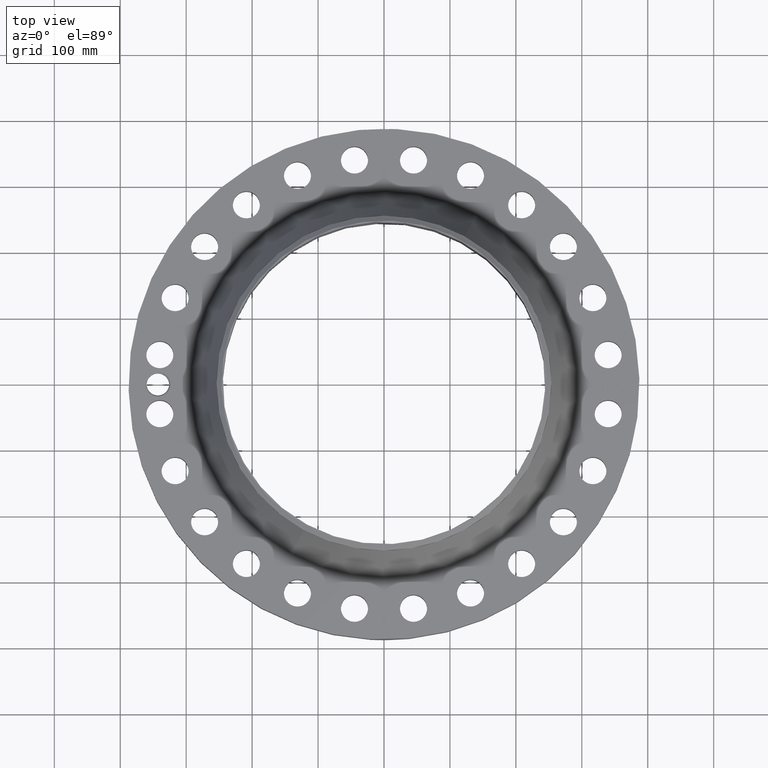
[diagram: clean part render]
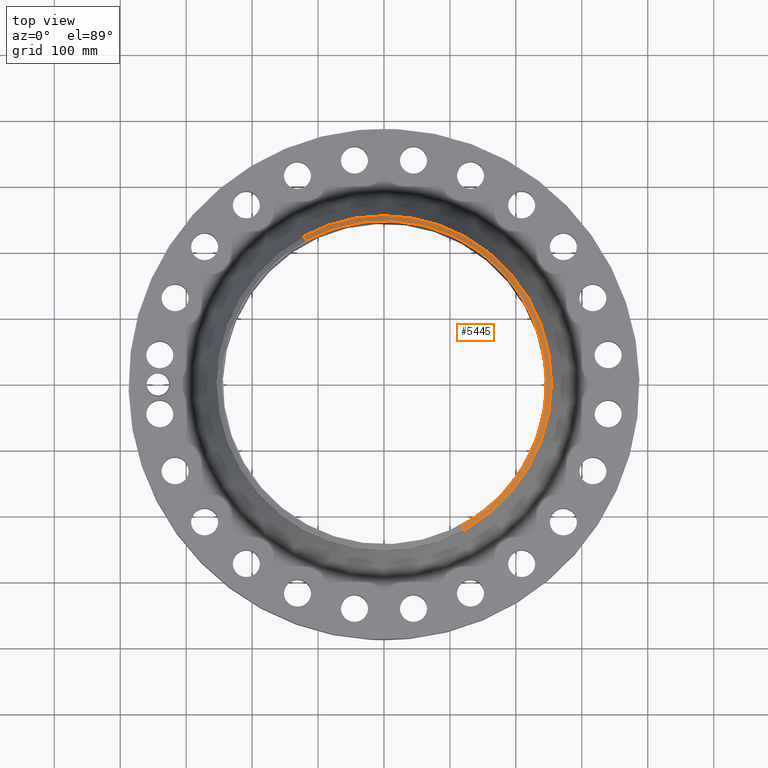
[diagram: same view with one face highlighted and labeled with its STEP entity id]
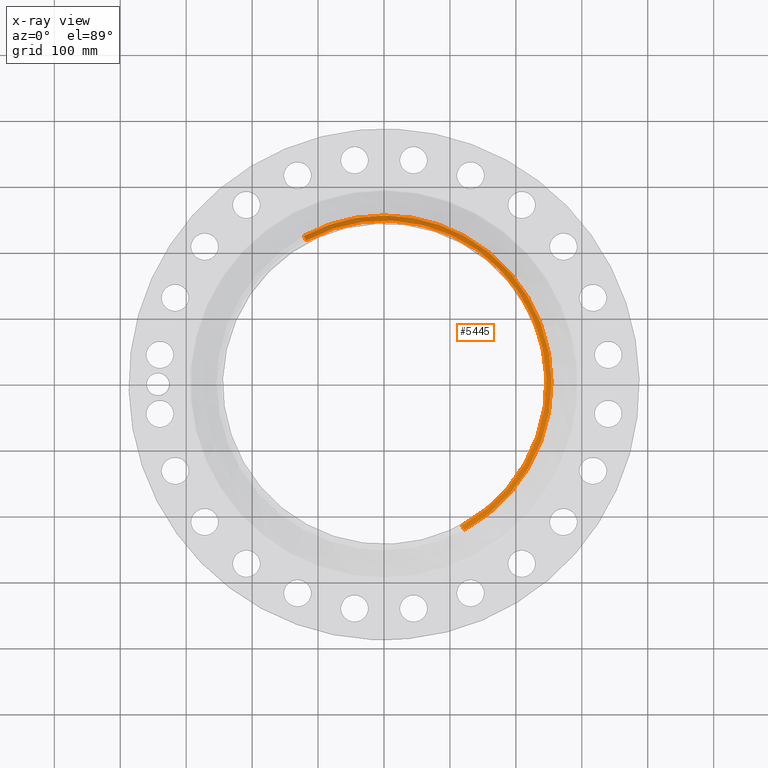
[diagram: x-ray of the same camera — body ghosted, the highlighted face saturated]
A machine part, top view. The second image highlights one B-rep face of the part: STEP entity #5445.
The next image is the same camera in x-ray: the body ghosted, the highlighted face saturated — about 0% of this face is hidden behind the body in this view.
In plain terms, the highlighted conical surface has half-angle 52.5 deg.
Its self-contained STEP definition (entity closure, byte-faithful):
#4248=AXIS2_PLACEMENT_3D('Circle Axis2P3D',#4246,#4247,$) ;
#4275=AXIS2_PLACEMENT_3D('Circle Axis2P3D',#4273,#4274,$) ;
#5061=AXIS2_PLACEMENT_3D('Circle Axis2P3D',#5059,#5060,$) ;
#5426=AXIS2_PLACEMENT_3D('Cone Axis2P3D',#5423,#5424,#5425) ;
#4243=CARTESIAN_POINT('Vertex',(4.79425538606,8.77582561894,6.64267182741)) ;
#4246=CARTESIAN_POINT('Axis2P3D Location',(0.,0.,6.64267182741)) ;
#4250=CARTESIAN_POINT('Vertex',(4.79425538606,-8.77582561894,6.64267182741)) ;
#4270=CARTESIAN_POINT('Vertex',(-4.79425538606,8.77582561894,6.64267182741)) ;
#4273=CARTESIAN_POINT('Axis2P3D Location',(0.,0.,6.64267182741)) ;
#5059=CARTESIAN_POINT('Axis2P3D Location',(0.,0.,6.87000000003)) ;
#5063=CARTESIAN_POINT('Vertex',(4.65222085149,-8.51583314735,6.87000000003)) ;
#5065=CARTESIAN_POINT('Vertex',(-4.65222085149,8.51583314735,6.87000000003)) ;
#5423=CARTESIAN_POINT('Axis2P3D Location',(0.,0.,6.87000000003)) ;
#5428=CARTESIAN_POINT('Line Origine',(-4.72323811878,8.64582938315,6.75633591372)) ;
#5433=CARTESIAN_POINT('Line Origine',(4.72323811878,-8.64582938315,6.75633591372)) ;
#4247=DIRECTION('Axis2P3D Direction',(0.,0.,-0.0393700787402)) ;
#4274=DIRECTION('Axis2P3D Direction',(0.,0.,-0.0393700787402)) ;
#5060=DIRECTION('Axis2P3D Direction',(0.,0.,-0.0393700787402)) ;
#5424=DIRECTION('Axis2P3D Direction',(-0.,-0.,-0.0393700787402)) ;
#5425=DIRECTION('Axis2P3D XDirection',(0.0188750212049,-0.0345504945626,0.)) ;
#5429=DIRECTION('Vector Direction',(-0.014974561121,0.02741075027,-0.023966985394)) ;
#5434=DIRECTION('Vector Direction',(0.014974561121,-0.02741075027,-0.023966985394)) ;
#5430=VECTOR('Line Direction',#5429,0.0393700787402) ;
#5435=VECTOR('Line Direction',#5434,0.0393700787402) ;
#5439=ORIENTED_EDGE('',*,*,#5432,.F.) ;
#5440=ORIENTED_EDGE('',*,*,#5067,.F.) ;
#5441=ORIENTED_EDGE('',*,*,#5437,.T.) ;
#5442=ORIENTED_EDGE('',*,*,#4252,.T.) ;
#5443=ORIENTED_EDGE('',*,*,#4277,.F.) ;
#5445=ADVANCED_FACE('PartBody',(#5444),#5427,.T.) ;
#4249=CIRCLE('generated circle',#4248,10.) ;
#4276=CIRCLE('generated circle',#4275,10.) ;
#5062=CIRCLE('generated circle',#5061,9.70374015752) ;
#5427=CONICAL_SURFACE('Cone',#5426,9.70374015752,0.916297857297) ;
#4252=EDGE_CURVE('',#4251,#4244,#4249,.F.) ;
#4277=EDGE_CURVE('',#4271,#4244,#4276,.T.) ;
#5067=EDGE_CURVE('',#5064,#5066,#5062,.F.) ;
#5432=EDGE_CURVE('',#5066,#4271,#5431,.T.) ;
#5437=EDGE_CURVE('',#5064,#4251,#5436,.T.) ;
#5438=EDGE_LOOP('',(#5439,#5440,#5441,#5442,#5443)) ;
#5444=FACE_OUTER_BOUND('',#5438,.T.) ;
#5431=LINE('Line',#5428,#5430) ;
#5436=LINE('Line',#5433,#5435) ;
#4244=VERTEX_POINT('',#4243) ;
#4251=VERTEX_POINT('',#4250) ;
#4271=VERTEX_POINT('',#4270) ;
#5064=VERTEX_POINT('',#5063) ;
#5066=VERTEX_POINT('',#5065) ;